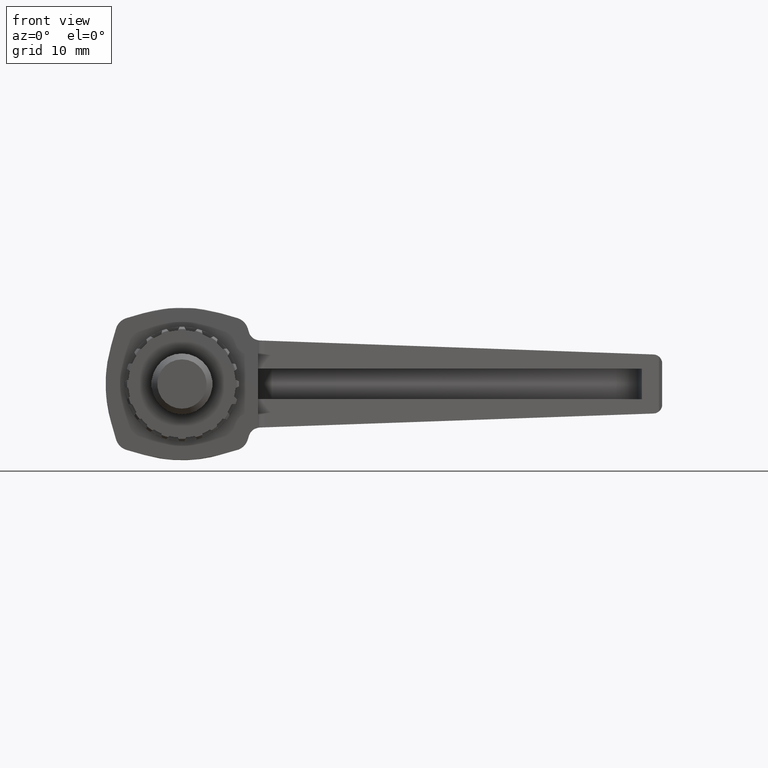
[diagram: clean part render]
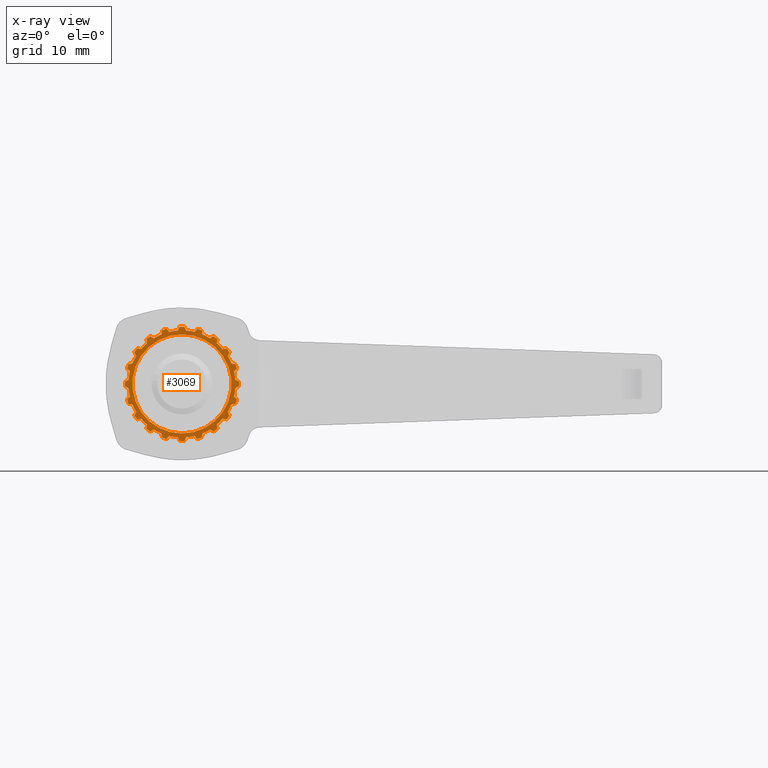
[diagram: x-ray — body ghosted, one internal face saturated and labeled with its STEP entity id]
A machine part, front view, then the same camera in x-ray: the body is ghosted and one INTERNAL B-rep face — a face not visible from any outside direction — is saturated and labeled: STEP entity #3069.
In plain terms, the highlighted planar face has unit normal (0, -1, 0).
Its self-contained STEP definition (entity closure, byte-faithful):
#190=FACE_BOUND('',#959,.T.);
#218=LINE('',#4412,#459);
#222=LINE('',#4437,#463);
#226=LINE('',#4450,#467);
#230=LINE('',#4469,#471);
#234=LINE('',#4482,#475);
#238=LINE('',#4501,#479);
#242=LINE('',#4514,#483);
#246=LINE('',#4533,#487);
#250=LINE('',#4546,#491);
#254=LINE('',#4565,#495);
#258=LINE('',#4578,#499);
#262=LINE('',#4597,#503);
#266=LINE('',#4610,#507);
#270=LINE('',#4629,#511);
#274=LINE('',#4642,#515);
#278=LINE('',#4661,#519);
#282=LINE('',#4674,#523);
#286=LINE('',#4693,#527);
#290=LINE('',#4706,#531);
#294=LINE('',#4725,#535);
#298=LINE('',#4738,#539);
#302=LINE('',#4757,#543);
#306=LINE('',#4770,#547);
#310=LINE('',#4789,#551);
#314=LINE('',#4802,#555);
#318=LINE('',#4821,#559);
#322=LINE('',#4834,#563);
#326=LINE('',#4853,#567);
#330=LINE('',#4866,#571);
#334=LINE('',#4885,#575);
#338=LINE('',#4898,#579);
#342=LINE('',#4917,#583);
#346=LINE('',#4930,#587);
#350=LINE('',#4949,#591);
#354=LINE('',#4962,#595);
#358=LINE('',#4981,#599);
#362=LINE('',#4994,#603);
#366=LINE('',#5013,#607);
#370=LINE('',#5026,#611);
#373=LINE('',#5038,#614);
#459=VECTOR('',#3511,0.535740453907497);
#463=VECTOR('',#3531,0.535740453907494);
#467=VECTOR('',#3537,0.535740453907497);
#471=VECTOR('',#3555,0.535740453907499);
#475=VECTOR('',#3561,0.535740453907502);
#479=VECTOR('',#3579,0.53574045390749);
#483=VECTOR('',#3585,0.53574045390749);
#487=VECTOR('',#3603,0.535740453907507);
#491=VECTOR('',#3609,0.535740453907502);
#495=VECTOR('',#3627,0.535740453907498);
#499=VECTOR('',#3633,0.535740453907495);
#503=VECTOR('',#3651,0.535740453907495);
#507=VECTOR('',#3657,0.535740453907497);
#511=VECTOR('',#3675,0.535740453907489);
#515=VECTOR('',#3681,0.535740453907502);
#519=VECTOR('',#3699,0.53574045390749);
#523=VECTOR('',#3705,0.535740453907495);
#527=VECTOR('',#3723,0.535740453907497);
#531=VECTOR('',#3729,0.535740453907501);
#535=VECTOR('',#3747,0.535740453907499);
#539=VECTOR('',#3753,0.535740453907502);
#543=VECTOR('',#3771,0.535740453907495);
#547=VECTOR('',#3777,0.535740453907495);
#551=VECTOR('',#3795,0.53574045390749);
#555=VECTOR('',#3801,0.535740453907502);
#559=VECTOR('',#3819,0.535740453907492);
#563=VECTOR('',#3825,0.53574045390749);
#567=VECTOR('',#3843,0.535740453907487);
#571=VECTOR('',#3849,0.535740453907495);
#575=VECTOR('',#3867,0.535740453907495);
#579=VECTOR('',#3873,0.535740453907495);
#583=VECTOR('',#3891,0.535740453907502);
#587=VECTOR('',#3897,0.535740453907497);
#591=VECTOR('',#3915,0.53574045390749);
#595=VECTOR('',#3921,0.535740453907492);
#599=VECTOR('',#3939,0.535740453907502);
#603=VECTOR('',#3945,0.53574045390749);
#607=VECTOR('',#3963,0.535740453907495);
#611=VECTOR('',#3969,0.535740453907502);
#614=VECTOR('',#3986,0.535740453907499);
#784=FACE_OUTER_BOUND('',#958,.T.);
#958=EDGE_LOOP('',(#2411,#2412,#2413,#2414,#2415,#2416,#2417,#2418,#2419,
#2420,#2421,#2422,#2423,#2424,#2425,#2426,#2427,#2428,#2429,#2430,#2431,
#2432,#2433,#2434,#2435,#2436,#2437,#2438,#2439,#2440,#2441,#2442,#2443,
#2444,#2445,#2446,#2447,#2448,#2449,#2450,#2451,#2452,#2453,#2454,#2455,
#2456,#2457,#2458,#2459,#2460,#2461,#2462,#2463,#2464,#2465,#2466,#2467,
#2468,#2469,#2470,#2471,#2472,#2473,#2474,#2475,#2476,#2477,#2478,#2479,
#2480,#2481,#2482,#2483,#2484,#2485,#2486,#2487,#2488,#2489,#2490));
#959=EDGE_LOOP('',(#2491));
#1043=CIRCLE('',#3151,7.50000000000103);
#1047=CIRCLE('',#3159,7.03124999999983);
#1049=CIRCLE('',#3164,7.4999999999995);
#1051=CIRCLE('',#3167,7.03124999999995);
#1053=CIRCLE('',#3172,7.49999999999924);
#1055=CIRCLE('',#3175,7.03124999999974);
#1057=CIRCLE('',#3180,7.49999999999985);
#1059=CIRCLE('',#3183,7.03125000000007);
#1061=CIRCLE('',#3188,7.50000000000053);
#1063=CIRCLE('',#3191,7.0312500000002);
#1065=CIRCLE('',#3196,7.50000000000005);
#1067=CIRCLE('',#3199,7.03125000000029);
#1069=CIRCLE('',#3204,7.50000000000036);
#1071=CIRCLE('',#3207,7.03125000000037);
#1073=CIRCLE('',#3212,7.50000000000016);
#1075=CIRCLE('',#3215,7.03125000000018);
#1077=CIRCLE('',#3220,7.49999999999891);
#1079=CIRCLE('',#3223,7.03125000000023);
#1081=CIRCLE('',#3228,7.4999999999996);
#1083=CIRCLE('',#3231,7.03125000000012);
#1085=CIRCLE('',#3236,7.50000000000049);
#1087=CIRCLE('',#3239,7.03124999999995);
#1089=CIRCLE('',#3244,7.50000000000138);
#1091=CIRCLE('',#3247,7.03124999999987);
#1093=CIRCLE('',#3252,7.49999999999982);
#1095=CIRCLE('',#3255,7.03125000000009);
#1097=CIRCLE('',#3260,7.49999999999865);
#1099=CIRCLE('',#3263,7.03125000000035);
#1101=CIRCLE('',#3268,7.50000000000007);
#1103=CIRCLE('',#3271,7.03124999999973);
#1105=CIRCLE('',#3276,7.50000000000153);
#1107=CIRCLE('',#3279,7.03124999999976);
#1109=CIRCLE('',#3284,7.50000000000024);
#1111=CIRCLE('',#3287,7.03125);
#1113=CIRCLE('',#3292,7.50000000000013);
#1115=CIRCLE('',#3295,7.03125000000002);
#1117=CIRCLE('',#3300,7.49999999999979);
#1119=CIRCLE('',#3303,7.03125000000013);
#1121=CIRCLE('',#3308,7.50000000000053);
#1123=CIRCLE('',#3311,7.03125000000037);
#1137=CIRCLE('',#3346,6.5);
#1196=VERTEX_POINT('',#4395);
#1199=VERTEX_POINT('',#4400);
#1202=VERTEX_POINT('',#4410);
#1206=VERTEX_POINT('',#4425);
#1209=VERTEX_POINT('',#4435);
#1210=VERTEX_POINT('',#4439);
#1214=VERTEX_POINT('',#4448);
#1216=VERTEX_POINT('',#4457);
#1219=VERTEX_POINT('',#4467);
#1220=VERTEX_POINT('',#4471);
#1224=VERTEX_POINT('',#4480);
#1226=VERTEX_POINT('',#4489);
#1229=VERTEX_POINT('',#4499);
#1230=VERTEX_POINT('',#4503);
#1234=VERTEX_POINT('',#4512);
#1236=VERTEX_POINT('',#4521);
#1239=VERTEX_POINT('',#4531);
#1240=VERTEX_POINT('',#4535);
#1244=VERTEX_POINT('',#4544);
#1246=VERTEX_POINT('',#4553);
#1249=VERTEX_POINT('',#4563);
#1250=VERTEX_POINT('',#4567);
#1254=VERTEX_POINT('',#4576);
#1256=VERTEX_POINT('',#4585);
#1259=VERTEX_POINT('',#4595);
#1260=VERTEX_POINT('',#4599);
#1264=VERTEX_POINT('',#4608);
#1266=VERTEX_POINT('',#4617);
#1269=VERTEX_POINT('',#4627);
#1270=VERTEX_POINT('',#4631);
#1274=VERTEX_POINT('',#4640);
#1276=VERTEX_POINT('',#4649);
#1279=VERTEX_POINT('',#4659);
#1280=VERTEX_POINT('',#4663);
#1284=VERTEX_POINT('',#4672);
#1286=VERTEX_POINT('',#4681);
#1289=VERTEX_POINT('',#4691);
#1290=VERTEX_POINT('',#4695);
#1294=VERTEX_POINT('',#4704);
#1296=VERTEX_POINT('',#4713);
#1299=VERTEX_POINT('',#4723);
#1300=VERTEX_POINT('',#4727);
#1304=VERTEX_POINT('',#4736);
#1306=VERTEX_POINT('',#4745);
#1309=VERTEX_POINT('',#4755);
#1310=VERTEX_POINT('',#4759);
#1314=VERTEX_POINT('',#4768);
#1316=VERTEX_POINT('',#4777);
#1319=VERTEX_POINT('',#4787);
#1320=VERTEX_POINT('',#4791);
#1324=VERTEX_POINT('',#4800);
#1326=VERTEX_POINT('',#4809);
#1329=VERTEX_POINT('',#4819);
#1330=VERTEX_POINT('',#4823);
#1334=VERTEX_POINT('',#4832);
#1336=VERTEX_POINT('',#4841);
#1339=VERTEX_POINT('',#4851);
#1340=VERTEX_POINT('',#4855);
#1344=VERTEX_POINT('',#4864);
#1346=VERTEX_POINT('',#4873);
#1349=VERTEX_POINT('',#4883);
#1350=VERTEX_POINT('',#4887);
#1354=VERTEX_POINT('',#4896);
#1356=VERTEX_POINT('',#4905);
#1359=VERTEX_POINT('',#4915);
#1360=VERTEX_POINT('',#4919);
#1364=VERTEX_POINT('',#4928);
#1366=VERTEX_POINT('',#4937);
#1369=VERTEX_POINT('',#4947);
#1370=VERTEX_POINT('',#4951);
#1374=VERTEX_POINT('',#4960);
#1376=VERTEX_POINT('',#4969);
#1379=VERTEX_POINT('',#4979);
#1380=VERTEX_POINT('',#4983);
#1384=VERTEX_POINT('',#4992);
#1386=VERTEX_POINT('',#5001);
#1389=VERTEX_POINT('',#5011);
#1390=VERTEX_POINT('',#5015);
#1394=VERTEX_POINT('',#5024);
#1396=VERTEX_POINT('',#5033);
#1425=VERTEX_POINT('',#5127);
#1511=EDGE_CURVE('',#1196,#1199,#1043,.F.);
#1515=EDGE_CURVE('',#1199,#1202,#218,.T.);
#1521=EDGE_CURVE('',#1202,#1206,#1047,.F.);
#1525=EDGE_CURVE('',#1206,#1209,#222,.T.);
#1530=EDGE_CURVE('',#1210,#1214,#226,.T.);
#1532=EDGE_CURVE('',#1209,#1210,#1049,.F.);
#1535=EDGE_CURVE('',#1214,#1216,#1051,.F.);
#1539=EDGE_CURVE('',#1216,#1219,#230,.T.);
#1544=EDGE_CURVE('',#1220,#1224,#234,.T.);
#1546=EDGE_CURVE('',#1219,#1220,#1053,.F.);
#1549=EDGE_CURVE('',#1224,#1226,#1055,.F.);
#1553=EDGE_CURVE('',#1226,#1229,#238,.T.);
#1558=EDGE_CURVE('',#1230,#1234,#242,.T.);
#1560=EDGE_CURVE('',#1229,#1230,#1057,.F.);
#1563=EDGE_CURVE('',#1234,#1236,#1059,.F.);
#1567=EDGE_CURVE('',#1236,#1239,#246,.T.);
#1572=EDGE_CURVE('',#1240,#1244,#250,.T.);
#1574=EDGE_CURVE('',#1239,#1240,#1061,.F.);
#1577=EDGE_CURVE('',#1244,#1246,#1063,.F.);
#1581=EDGE_CURVE('',#1246,#1249,#254,.T.);
#1586=EDGE_CURVE('',#1250,#1254,#258,.T.);
#1588=EDGE_CURVE('',#1249,#1250,#1065,.F.);
#1591=EDGE_CURVE('',#1254,#1256,#1067,.F.);
#1595=EDGE_CURVE('',#1256,#1259,#262,.T.);
#1600=EDGE_CURVE('',#1260,#1264,#266,.T.);
#1602=EDGE_CURVE('',#1259,#1260,#1069,.F.);
#1605=EDGE_CURVE('',#1264,#1266,#1071,.F.);
#1609=EDGE_CURVE('',#1266,#1269,#270,.T.);
#1614=EDGE_CURVE('',#1270,#1274,#274,.T.);
#1616=EDGE_CURVE('',#1269,#1270,#1073,.F.);
#1619=EDGE_CURVE('',#1274,#1276,#1075,.F.);
#1623=EDGE_CURVE('',#1276,#1279,#278,.T.);
#1628=EDGE_CURVE('',#1280,#1284,#282,.T.);
#1630=EDGE_CURVE('',#1279,#1280,#1077,.F.);
#1633=EDGE_CURVE('',#1284,#1286,#1079,.F.);
#1637=EDGE_CURVE('',#1286,#1289,#286,.T.);
#1642=EDGE_CURVE('',#1290,#1294,#290,.T.);
#1644=EDGE_CURVE('',#1289,#1290,#1081,.F.);
#1647=EDGE_CURVE('',#1294,#1296,#1083,.F.);
#1651=EDGE_CURVE('',#1296,#1299,#294,.T.);
#1656=EDGE_CURVE('',#1300,#1304,#298,.T.);
#1658=EDGE_CURVE('',#1299,#1300,#1085,.F.);
#1661=EDGE_CURVE('',#1304,#1306,#1087,.F.);
#1665=EDGE_CURVE('',#1306,#1309,#302,.T.);
#1670=EDGE_CURVE('',#1310,#1314,#306,.T.);
#1672=EDGE_CURVE('',#1309,#1310,#1089,.F.);
#1675=EDGE_CURVE('',#1314,#1316,#1091,.F.);
#1679=EDGE_CURVE('',#1316,#1319,#310,.T.);
#1684=EDGE_CURVE('',#1320,#1324,#314,.T.);
#1686=EDGE_CURVE('',#1319,#1320,#1093,.F.);
#1689=EDGE_CURVE('',#1324,#1326,#1095,.F.);
#1693=EDGE_CURVE('',#1326,#1329,#318,.T.);
#1698=EDGE_CURVE('',#1330,#1334,#322,.T.);
#1700=EDGE_CURVE('',#1329,#1330,#1097,.F.);
#1703=EDGE_CURVE('',#1334,#1336,#1099,.F.);
#1707=EDGE_CURVE('',#1336,#1339,#326,.T.);
#1712=EDGE_CURVE('',#1340,#1344,#330,.T.);
#1714=EDGE_CURVE('',#1339,#1340,#1101,.F.);
#1717=EDGE_CURVE('',#1344,#1346,#1103,.F.);
#1721=EDGE_CURVE('',#1346,#1349,#334,.T.);
#1726=EDGE_CURVE('',#1350,#1354,#338,.T.);
#1728=EDGE_CURVE('',#1349,#1350,#1105,.F.);
#1731=EDGE_CURVE('',#1354,#1356,#1107,.F.);
#1735=EDGE_CURVE('',#1356,#1359,#342,.T.);
#1740=EDGE_CURVE('',#1360,#1364,#346,.T.);
#1742=EDGE_CURVE('',#1359,#1360,#1109,.F.);
#1745=EDGE_CURVE('',#1364,#1366,#1111,.F.);
#1749=EDGE_CURVE('',#1366,#1369,#350,.T.);
#1754=EDGE_CURVE('',#1370,#1374,#354,.T.);
#1756=EDGE_CURVE('',#1369,#1370,#1113,.F.);
#1759=EDGE_CURVE('',#1374,#1376,#1115,.F.);
#1763=EDGE_CURVE('',#1376,#1379,#358,.T.);
#1768=EDGE_CURVE('',#1380,#1384,#362,.T.);
#1770=EDGE_CURVE('',#1379,#1380,#1117,.F.);
#1773=EDGE_CURVE('',#1384,#1386,#1119,.F.);
#1777=EDGE_CURVE('',#1386,#1389,#366,.T.);
#1782=EDGE_CURVE('',#1390,#1394,#370,.T.);
#1784=EDGE_CURVE('',#1389,#1390,#1121,.F.);
#1787=EDGE_CURVE('',#1394,#1396,#1123,.F.);
#1789=EDGE_CURVE('',#1396,#1196,#373,.T.);
#1830=EDGE_CURVE('',#1425,#1425,#1137,.T.);
#2411=ORIENTED_EDGE('',*,*,#1658,.T.);
#2412=ORIENTED_EDGE('',*,*,#1656,.T.);
#2413=ORIENTED_EDGE('',*,*,#1661,.T.);
#2414=ORIENTED_EDGE('',*,*,#1665,.T.);
#2415=ORIENTED_EDGE('',*,*,#1672,.T.);
#2416=ORIENTED_EDGE('',*,*,#1670,.T.);
#2417=ORIENTED_EDGE('',*,*,#1675,.T.);
#2418=ORIENTED_EDGE('',*,*,#1679,.T.);
#2419=ORIENTED_EDGE('',*,*,#1686,.T.);
#2420=ORIENTED_EDGE('',*,*,#1684,.T.);
#2421=ORIENTED_EDGE('',*,*,#1689,.T.);
#2422=ORIENTED_EDGE('',*,*,#1693,.T.);
#2423=ORIENTED_EDGE('',*,*,#1700,.T.);
#2424=ORIENTED_EDGE('',*,*,#1698,.T.);
#2425=ORIENTED_EDGE('',*,*,#1703,.T.);
#2426=ORIENTED_EDGE('',*,*,#1707,.T.);
#2427=ORIENTED_EDGE('',*,*,#1714,.T.);
#2428=ORIENTED_EDGE('',*,*,#1712,.T.);
#2429=ORIENTED_EDGE('',*,*,#1717,.T.);
#2430=ORIENTED_EDGE('',*,*,#1721,.T.);
#2431=ORIENTED_EDGE('',*,*,#1728,.T.);
#2432=ORIENTED_EDGE('',*,*,#1726,.T.);
#2433=ORIENTED_EDGE('',*,*,#1731,.T.);
#2434=ORIENTED_EDGE('',*,*,#1735,.T.);
#2435=ORIENTED_EDGE('',*,*,#1742,.T.);
#2436=ORIENTED_EDGE('',*,*,#1740,.T.);
#2437=ORIENTED_EDGE('',*,*,#1745,.T.);
#2438=ORIENTED_EDGE('',*,*,#1749,.T.);
#2439=ORIENTED_EDGE('',*,*,#1756,.T.);
#2440=ORIENTED_EDGE('',*,*,#1754,.T.);
#2441=ORIENTED_EDGE('',*,*,#1759,.T.);
#2442=ORIENTED_EDGE('',*,*,#1763,.T.);
#2443=ORIENTED_EDGE('',*,*,#1770,.T.);
#2444=ORIENTED_EDGE('',*,*,#1768,.T.);
#2445=ORIENTED_EDGE('',*,*,#1773,.T.);
#2446=ORIENTED_EDGE('',*,*,#1777,.T.);
#2447=ORIENTED_EDGE('',*,*,#1784,.T.);
#2448=ORIENTED_EDGE('',*,*,#1782,.T.);
#2449=ORIENTED_EDGE('',*,*,#1787,.T.);
#2450=ORIENTED_EDGE('',*,*,#1789,.T.);
#2451=ORIENTED_EDGE('',*,*,#1511,.T.);
#2452=ORIENTED_EDGE('',*,*,#1515,.T.);
#2453=ORIENTED_EDGE('',*,*,#1521,.T.);
#2454=ORIENTED_EDGE('',*,*,#1525,.T.);
#2455=ORIENTED_EDGE('',*,*,#1532,.T.);
#2456=ORIENTED_EDGE('',*,*,#1530,.T.);
#2457=ORIENTED_EDGE('',*,*,#1535,.T.);
#2458=ORIENTED_EDGE('',*,*,#1539,.T.);
#2459=ORIENTED_EDGE('',*,*,#1546,.T.);
#2460=ORIENTED_EDGE('',*,*,#1544,.T.);
#2461=ORIENTED_EDGE('',*,*,#1549,.T.);
#2462=ORIENTED_EDGE('',*,*,#1553,.T.);
#2463=ORIENTED_EDGE('',*,*,#1560,.T.);
#2464=ORIENTED_EDGE('',*,*,#1558,.T.);
#2465=ORIENTED_EDGE('',*,*,#1563,.T.);
#2466=ORIENTED_EDGE('',*,*,#1567,.T.);
#2467=ORIENTED_EDGE('',*,*,#1574,.T.);
#2468=ORIENTED_EDGE('',*,*,#1572,.T.);
#2469=ORIENTED_EDGE('',*,*,#1577,.T.);
#2470=ORIENTED_EDGE('',*,*,#1581,.T.);
#2471=ORIENTED_EDGE('',*,*,#1588,.T.);
#2472=ORIENTED_EDGE('',*,*,#1586,.T.);
#2473=ORIENTED_EDGE('',*,*,#1591,.T.);
#2474=ORIENTED_EDGE('',*,*,#1595,.T.);
#2475=ORIENTED_EDGE('',*,*,#1602,.T.);
#2476=ORIENTED_EDGE('',*,*,#1600,.T.);
#2477=ORIENTED_EDGE('',*,*,#1605,.T.);
#2478=ORIENTED_EDGE('',*,*,#1609,.T.);
#2479=ORIENTED_EDGE('',*,*,#1616,.T.);
#2480=ORIENTED_EDGE('',*,*,#1614,.T.);
#2481=ORIENTED_EDGE('',*,*,#1619,.T.);
#2482=ORIENTED_EDGE('',*,*,#1623,.T.);
#2483=ORIENTED_EDGE('',*,*,#1630,.T.);
#2484=ORIENTED_EDGE('',*,*,#1628,.T.);
#2485=ORIENTED_EDGE('',*,*,#1633,.T.);
#2486=ORIENTED_EDGE('',*,*,#1637,.T.);
#2487=ORIENTED_EDGE('',*,*,#1644,.T.);
#2488=ORIENTED_EDGE('',*,*,#1642,.T.);
#2489=ORIENTED_EDGE('',*,*,#1647,.T.);
#2490=ORIENTED_EDGE('',*,*,#1651,.T.);
#2491=ORIENTED_EDGE('',*,*,#1830,.T.);
#2922=PLANE('',#3345);
#3069=ADVANCED_FACE('',(#784,#190),#2922,.F.);
#3151=AXIS2_PLACEMENT_3D('',#4402,#3505,#3506);
#3159=AXIS2_PLACEMENT_3D('',#4427,#3525,#3526);
#3164=AXIS2_PLACEMENT_3D('',#4453,#3542,#3543);
#3167=AXIS2_PLACEMENT_3D('',#4459,#3549,#3550);
#3172=AXIS2_PLACEMENT_3D('',#4485,#3566,#3567);
#3175=AXIS2_PLACEMENT_3D('',#4491,#3573,#3574);
#3180=AXIS2_PLACEMENT_3D('',#4517,#3590,#3591);
#3183=AXIS2_PLACEMENT_3D('',#4523,#3597,#3598);
#3188=AXIS2_PLACEMENT_3D('',#4549,#3614,#3615);
#3191=AXIS2_PLACEMENT_3D('',#4555,#3621,#3622);
#3196=AXIS2_PLACEMENT_3D('',#4581,#3638,#3639);
#3199=AXIS2_PLACEMENT_3D('',#4587,#3645,#3646);
#3204=AXIS2_PLACEMENT_3D('',#4613,#3662,#3663);
#3207=AXIS2_PLACEMENT_3D('',#4619,#3669,#3670);
#3212=AXIS2_PLACEMENT_3D('',#4645,#3686,#3687);
#3215=AXIS2_PLACEMENT_3D('',#4651,#3693,#3694);
#3220=AXIS2_PLACEMENT_3D('',#4677,#3710,#3711);
#3223=AXIS2_PLACEMENT_3D('',#4683,#3717,#3718);
#3228=AXIS2_PLACEMENT_3D('',#4709,#3734,#3735);
#3231=AXIS2_PLACEMENT_3D('',#4715,#3741,#3742);
#3236=AXIS2_PLACEMENT_3D('',#4741,#3758,#3759);
#3239=AXIS2_PLACEMENT_3D('',#4747,#3765,#3766);
#3244=AXIS2_PLACEMENT_3D('',#4773,#3782,#3783);
#3247=AXIS2_PLACEMENT_3D('',#4779,#3789,#3790);
#3252=AXIS2_PLACEMENT_3D('',#4805,#3806,#3807);
#3255=AXIS2_PLACEMENT_3D('',#4811,#3813,#3814);
#3260=AXIS2_PLACEMENT_3D('',#4837,#3830,#3831);
#3263=AXIS2_PLACEMENT_3D('',#4843,#3837,#3838);
#3268=AXIS2_PLACEMENT_3D('',#4869,#3854,#3855);
#3271=AXIS2_PLACEMENT_3D('',#4875,#3861,#3862);
#3276=AXIS2_PLACEMENT_3D('',#4901,#3878,#3879);
#3279=AXIS2_PLACEMENT_3D('',#4907,#3885,#3886);
#3284=AXIS2_PLACEMENT_3D('',#4933,#3902,#3903);
#3287=AXIS2_PLACEMENT_3D('',#4939,#3909,#3910);
#3292=AXIS2_PLACEMENT_3D('',#4965,#3926,#3927);
#3295=AXIS2_PLACEMENT_3D('',#4971,#3933,#3934);
#3300=AXIS2_PLACEMENT_3D('',#4997,#3950,#3951);
#3303=AXIS2_PLACEMENT_3D('',#5003,#3957,#3958);
#3308=AXIS2_PLACEMENT_3D('',#5029,#3974,#3975);
#3311=AXIS2_PLACEMENT_3D('',#5035,#3981,#3982);
#3345=AXIS2_PLACEMENT_3D('',#5126,#4078,#4079);
#3346=AXIS2_PLACEMENT_3D('',#5128,#4080,#4081);
#3505=DIRECTION('center_axis',(0.,-1.,0.));
#3506=DIRECTION('ref_axis',(0.,0.,-1.));
#3511=DIRECTION('',(0.90258528434986,0.,0.430511096808297));
#3525=DIRECTION('center_axis',(0.,-1.,0.));
#3526=DIRECTION('ref_axis',(0.,0.,-1.));
#3531=DIRECTION('',(-0.725374371012289,0.,0.688354575693753));
#3537=DIRECTION('',(0.99144486137381,0.,0.130526192220054));
#3542=DIRECTION('center_axis',(0.,-1.,0.));
#3543=DIRECTION('ref_axis',(0.,0.,-1.));
#3549=DIRECTION('center_axis',(0.,-1.,0.));
#3550=DIRECTION('ref_axis',(0.,0.,-1.));
#3555=DIRECTION('',(-0.477158760259612,0.,0.878817112661963));
#3561=DIRECTION('',(0.983254907563955,0.,-0.182235525492144));
#3566=DIRECTION('center_axis',(0.,-1.,0.));
#3567=DIRECTION('ref_axis',(0.,0.,-1.));
#3573=DIRECTION('center_axis',(0.,-1.,0.));
#3574=DIRECTION('ref_axis',(0.,0.,-1.));
#3579=DIRECTION('',(-0.18223552549215,0.,0.983254907563954));
#3585=DIRECTION('',(0.878817112661964,0.,-0.47715876025961));
#3590=DIRECTION('center_axis',(0.,-1.,0.));
#3591=DIRECTION('ref_axis',(0.,0.,-1.));
#3597=DIRECTION('center_axis',(0.,-1.,0.));
#3598=DIRECTION('ref_axis',(0.,0.,-1.));
#3603=DIRECTION('',(0.13052619222005,0.,0.991444861373811));
#3609=DIRECTION('',(0.688354575693756,0.,-0.725374371012285));
#3614=DIRECTION('center_axis',(0.,-1.,0.));
#3615=DIRECTION('ref_axis',(0.,0.,-1.));
#3621=DIRECTION('center_axis',(0.,-1.,0.));
#3622=DIRECTION('ref_axis',(0.,0.,-1.));
#3627=DIRECTION('',(0.430511096808294,0.,0.902585284349861));
#3633=DIRECTION('',(0.430511096808297,0.,-0.90258528434986));
#3638=DIRECTION('center_axis',(0.,-1.,0.));
#3639=DIRECTION('ref_axis',(0.,0.,-1.));
#3645=DIRECTION('center_axis',(0.,-1.,0.));
#3646=DIRECTION('ref_axis',(0.,0.,-1.));
#3651=DIRECTION('',(0.688354575693753,0.,0.725374371012289));
#3657=DIRECTION('',(0.130526192220054,0.,-0.99144486137381));
#3662=DIRECTION('center_axis',(0.,-1.,0.));
#3663=DIRECTION('ref_axis',(0.,0.,-1.));
#3669=DIRECTION('center_axis',(0.,-1.,0.));
#3670=DIRECTION('ref_axis',(0.,0.,-1.));
#3675=DIRECTION('',(0.878817112661964,0.,0.477158760259611));
#3681=DIRECTION('',(-0.182235525492146,0.,-0.983254907563955));
#3686=DIRECTION('center_axis',(0.,-1.,0.));
#3687=DIRECTION('ref_axis',(0.,0.,-1.));
#3693=DIRECTION('center_axis',(0.,-1.,0.));
#3694=DIRECTION('ref_axis',(0.,0.,-1.));
#3699=DIRECTION('',(0.983254907563954,0.,0.18223552549215));
#3705=DIRECTION('',(-0.477158760259605,0.,-0.878817112661967));
#3710=DIRECTION('center_axis',(0.,-1.,0.));
#3711=DIRECTION('ref_axis',(0.,0.,-1.));
#3717=DIRECTION('center_axis',(0.,-1.,0.));
#3718=DIRECTION('ref_axis',(0.,0.,-1.));
#3723=DIRECTION('',(0.991444861373811,0.,-0.130526192220047));
#3729=DIRECTION('',(-0.725374371012285,0.,-0.688354575693757));
#3734=DIRECTION('center_axis',(0.,-1.,0.));
#3735=DIRECTION('ref_axis',(0.,0.,-1.));
#3741=DIRECTION('center_axis',(0.,-1.,0.));
#3742=DIRECTION('ref_axis',(0.,0.,-1.));
#3747=DIRECTION('',(0.902585284349862,0.,-0.430511096808293));
#3753=DIRECTION('',(-0.902585284349859,0.,-0.430511096808299));
#3758=DIRECTION('center_axis',(0.,-1.,0.));
#3759=DIRECTION('ref_axis',(0.,0.,-1.));
#3765=DIRECTION('center_axis',(0.,-1.,0.));
#3766=DIRECTION('ref_axis',(0.,0.,-1.));
#3771=DIRECTION('',(0.725374371012291,0.,-0.68835457569375));
#3777=DIRECTION('',(-0.99144486137381,0.,-0.130526192220054));
#3782=DIRECTION('center_axis',(0.,-1.,0.));
#3783=DIRECTION('ref_axis',(0.,0.,-1.));
#3789=DIRECTION('center_axis',(0.,-1.,0.));
#3790=DIRECTION('ref_axis',(0.,0.,-1.));
#3795=DIRECTION('',(0.477158760259613,0.,-0.878817112661963));
#3801=DIRECTION('',(-0.983254907563955,0.,0.182235525492145));
#3806=DIRECTION('center_axis',(0.,-1.,0.));
#3807=DIRECTION('ref_axis',(0.,0.,-1.));
#3813=DIRECTION('center_axis',(0.,-1.,0.));
#3814=DIRECTION('ref_axis',(0.,0.,-1.));
#3819=DIRECTION('',(0.18223552549215,0.,-0.983254907563954));
#3825=DIRECTION('',(-0.878817112661964,0.,0.47715876025961));
#3830=DIRECTION('center_axis',(0.,-1.,0.));
#3831=DIRECTION('ref_axis',(0.,0.,-1.));
#3837=DIRECTION('center_axis',(0.,-1.,0.));
#3838=DIRECTION('ref_axis',(0.,0.,-1.));
#3843=DIRECTION('',(-0.130526192220046,0.,-0.991444861373811));
#3849=DIRECTION('',(-0.688354575693754,0.,0.725374371012288));
#3854=DIRECTION('center_axis',(0.,-1.,0.));
#3855=DIRECTION('ref_axis',(0.,0.,-1.));
#3861=DIRECTION('center_axis',(0.,-1.,0.));
#3862=DIRECTION('ref_axis',(0.,0.,-1.));
#3867=DIRECTION('',(-0.430511096808294,0.,-0.902585284349861));
#3873=DIRECTION('',(-0.430511096808294,0.,0.902585284349861));
#3878=DIRECTION('center_axis',(0.,-1.,0.));
#3879=DIRECTION('ref_axis',(0.,0.,-1.));
#3885=DIRECTION('center_axis',(0.,-1.,0.));
#3886=DIRECTION('ref_axis',(0.,0.,-1.));
#3891=DIRECTION('',(-0.688354575693757,0.,-0.725374371012285));
#3897=DIRECTION('',(-0.130526192220053,0.,0.99144486137381));
#3902=DIRECTION('center_axis',(0.,-1.,0.));
#3903=DIRECTION('ref_axis',(0.,0.,-1.));
#3909=DIRECTION('center_axis',(0.,-1.,0.));
#3910=DIRECTION('ref_axis',(0.,0.,-1.));
#3915=DIRECTION('',(-0.878817112661965,0.,-0.477158760259608));
#3921=DIRECTION('',(0.182235525492146,0.,0.983254907563955));
#3926=DIRECTION('center_axis',(0.,-1.,0.));
#3927=DIRECTION('ref_axis',(0.,0.,-1.));
#3933=DIRECTION('center_axis',(0.,-1.,0.));
#3934=DIRECTION('ref_axis',(0.,0.,-1.));
#3939=DIRECTION('',(-0.983254907563955,0.,-0.182235525492146));
#3945=DIRECTION('',(0.47715876025961,0.,0.878817112661965));
#3950=DIRECTION('center_axis',(0.,-1.,0.));
#3951=DIRECTION('ref_axis',(0.,0.,-1.));
#3957=DIRECTION('center_axis',(0.,-1.,0.));
#3958=DIRECTION('ref_axis',(0.,0.,-1.));
#3963=DIRECTION('',(-0.99144486137381,0.,0.13052619222005));
#3969=DIRECTION('',(0.725374371012285,0.,0.688354575693757));
#3974=DIRECTION('center_axis',(0.,-1.,0.));
#3975=DIRECTION('ref_axis',(0.,0.,-1.));
#3981=DIRECTION('center_axis',(0.,-1.,0.));
#3982=DIRECTION('ref_axis',(0.,0.,-1.));
#3986=DIRECTION('',(-0.90258528434986,0.,0.430511096808296));
#4078=DIRECTION('center_axis',(0.,-1.,0.));
#4079=DIRECTION('ref_axis',(0.,0.,-1.));
#4080=DIRECTION('center_axis',(0.,-1.,0.));
#4081=DIRECTION('ref_axis',(0.,0.,-1.));
#4395=CARTESIAN_POINT('',(-7.49312645273888,7.6,-0.321023306420111));
#4400=CARTESIAN_POINT('',(-7.49312645273888,7.6,0.321023306420117));
#4402=CARTESIAN_POINT('Origin',(1.02608893604028E-012,7.6,2.04372109513518E-014));
#4410=CARTESIAN_POINT('',(-7.00957500281106,7.6,0.55166551683641));
#4412=CARTESIAN_POINT('',(-7.49312645273888,7.6,0.321023306420116));
#4425=CARTESIAN_POINT('',(-6.83697600279616,7.6,1.64141271461184));
#4427=CARTESIAN_POINT('Origin',(-1.73472347597681E-013,7.6,1.78893358460108E-014));
#4435=CARTESIAN_POINT('',(-7.22558839757515,7.6,2.01019210744331));
#4437=CARTESIAN_POINT('',(-6.83697600279616,7.6,1.64141271461184));
#4439=CARTESIAN_POINT('',(-7.02718508302664,7.6,2.62081472235025));
#4448=CARTESIAN_POINT('',(-6.49602796296998,7.6,2.69074288381704));
#4450=CARTESIAN_POINT('',(-7.02718508302664,7.6,2.62081472235024));
#4453=CARTESIAN_POINT('Origin',(-4.80518402845576E-013,7.6,1.4658413372004E-013));
#4457=CARTESIAN_POINT('',(-5.99512615561471,7.6,3.67381803315901));
#4459=CARTESIAN_POINT('Origin',(-4.85722573273506E-014,7.6,2.08166817117217E-014));
#4467=CARTESIAN_POINT('',(-6.25075940642213,7.6,4.14463591199821));
#4469=CARTESIAN_POINT('',(-5.9951261556147,7.6,3.67381803315901));
#4471=CARTESIAN_POINT('',(-5.87337387611031,7.6,4.66406253296684));
#4480=CARTESIAN_POINT('',(-5.34660444562522,7.6,4.5664315898216));
#4482=CARTESIAN_POINT('',(-5.87337387611031,7.6,4.66406253296684));
#4485=CARTESIAN_POINT('Origin',(-6.21031004399697E-013,7.6,4.44089209850063E-013));
#4489=CARTESIAN_POINT('',(-4.56643158982161,7.6,5.34660444562522));
#4491=CARTESIAN_POINT('Origin',(-1.89084858881472E-013,7.6,1.8474805019153E-013));
#4499=CARTESIAN_POINT('',(-4.66406253296684,7.6,5.8733738761103));
#4501=CARTESIAN_POINT('',(-4.5664315898216,7.6,5.34660444562522));
#4503=CARTESIAN_POINT('',(-4.14463591199821,7.6,6.25075940642213));
#4512=CARTESIAN_POINT('',(-3.67381803315902,7.6,5.99512615561471));
#4514=CARTESIAN_POINT('',(-4.14463591199821,7.6,6.25075940642213));
#4517=CARTESIAN_POINT('Origin',(-7.80625564189563E-014,7.6,1.30971622436249E-013));
#4521=CARTESIAN_POINT('',(-2.69074288381704,7.6,6.49602796296998));
#4523=CARTESIAN_POINT('Origin',(4.0766001685455E-014,7.6,-5.72458747072346E-014));
#4531=CARTESIAN_POINT('',(-2.62081472235025,7.6,7.02718508302665));
#4533=CARTESIAN_POINT('',(-2.69074288381704,7.6,6.49602796296998));
#4535=CARTESIAN_POINT('',(-2.01019210744331,7.6,7.22558839757515));
#4544=CARTESIAN_POINT('',(-1.64141271461183,7.6,6.83697600279616));
#4546=CARTESIAN_POINT('',(-2.01019210744331,7.6,7.22558839757515));
#4549=CARTESIAN_POINT('Origin',(1.45283091113058E-013,7.6,-5.13478148889135E-013));
#4553=CARTESIAN_POINT('',(-0.551665516836413,7.6,7.00957500281106));
#4555=CARTESIAN_POINT('Origin',(4.11996825544492E-014,7.6,-1.94289029309402E-013));
#4563=CARTESIAN_POINT('',(-0.321023306420119,7.6,7.49312645273888));
#4565=CARTESIAN_POINT('',(-0.551665516836409,7.6,7.00957500281106));
#4567=CARTESIAN_POINT('',(0.321023306420119,7.6,7.49312645273888));
#4576=CARTESIAN_POINT('',(0.551665516836408,7.6,7.00957500281106));
#4578=CARTESIAN_POINT('',(0.321023306420122,7.6,7.49312645273888));
#4581=CARTESIAN_POINT('Origin',(-8.94466792300541E-016,7.6,-4.9439619065339E-014));
#4585=CARTESIAN_POINT('',(1.64141271461184,7.6,6.83697600279616));
#4587=CARTESIAN_POINT('Origin',(-4.6295432765131E-014,7.6,-2.83627288322208E-013));
#4595=CARTESIAN_POINT('',(2.01019210744331,7.6,7.22558839757515));
#4597=CARTESIAN_POINT('',(1.64141271461184,7.6,6.83697600279617));
#4599=CARTESIAN_POINT('',(2.62081472235025,7.6,7.02718508302665));
#4608=CARTESIAN_POINT('',(2.69074288381704,7.6,6.49602796296999));
#4610=CARTESIAN_POINT('',(2.62081472235024,7.6,7.02718508302665));
#4613=CARTESIAN_POINT('Origin',(-1.09287578986539E-013,7.6,-3.46944695195361E-013));
#4617=CARTESIAN_POINT('',(3.67381803315902,7.6,5.99512615561471));
#4619=CARTESIAN_POINT('Origin',(-1.56558793706907E-013,7.6,-3.32199545649559E-013));
#4627=CARTESIAN_POINT('',(4.14463591199821,7.6,6.25075940642213));
#4629=CARTESIAN_POINT('',(3.67381803315902,7.6,5.99512615561471));
#4631=CARTESIAN_POINT('',(4.66406253296683,7.6,5.87337387611031));
#4640=CARTESIAN_POINT('',(4.5664315898216,7.6,5.34660444562522));
#4642=CARTESIAN_POINT('',(4.66406253296683,7.6,5.87337387611031));
#4645=CARTESIAN_POINT('Origin',(-1.17961196366423E-013,7.6,-1.17961196366423E-013));
#4649=CARTESIAN_POINT('',(5.34660444562522,7.6,4.56643158982161));
#4651=CARTESIAN_POINT('Origin',(-1.35308431126191E-013,7.6,-1.17093834628434E-013));
#4659=CARTESIAN_POINT('',(5.8733738761103,7.6,4.66406253296684));
#4661=CARTESIAN_POINT('',(5.34660444562522,7.6,4.5664315898216));
#4663=CARTESIAN_POINT('',(6.25075940642212,7.6,4.14463591199822));
#4672=CARTESIAN_POINT('',(5.99512615561471,7.6,3.67381803315902));
#4674=CARTESIAN_POINT('',(6.25075940642213,7.6,4.14463591199822));
#4677=CARTESIAN_POINT('Origin',(8.66494376250415E-013,7.6,6.5746019739521E-013));
#4681=CARTESIAN_POINT('',(6.49602796296998,7.6,2.69074288381705));
#4683=CARTESIAN_POINT('Origin',(-1.96891114523368E-013,7.6,-1.1145598333151E-013));
#4691=CARTESIAN_POINT('',(7.02718508302664,7.6,2.62081472235025));
#4693=CARTESIAN_POINT('',(6.49602796296998,7.6,2.69074288381703));
#4695=CARTESIAN_POINT('',(7.22558839757515,7.6,2.01019210744332));
#4704=CARTESIAN_POINT('',(6.83697600279616,7.6,1.64141271461184));
#4706=CARTESIAN_POINT('',(7.22558839757515,7.6,2.01019210744332));
#4709=CARTESIAN_POINT('Origin',(3.77302356024956E-013,7.6,1.26634813746307E-013));
#4713=CARTESIAN_POINT('',(7.00957500281106,7.6,0.551665516836416));
#4715=CARTESIAN_POINT('Origin',(-1.21430643318377E-013,7.6,-2.12503625807159E-014));
#4723=CARTESIAN_POINT('',(7.49312645273888,7.6,0.32102330642012));
#4725=CARTESIAN_POINT('',(7.00957500281106,7.6,0.551665516836408));
#4727=CARTESIAN_POINT('',(7.49312645273888,7.6,-0.321023306420102));
#4736=CARTESIAN_POINT('',(7.00957500281106,7.6,-0.551665516836407));
#4738=CARTESIAN_POINT('',(7.49312645273888,7.6,-0.321023306420113));
#4741=CARTESIAN_POINT('Origin',(-4.90926743701436E-013,7.6,-7.42678488152571E-015));
#4745=CARTESIAN_POINT('',(6.83697600279616,7.6,-1.64141271461184));
#4747=CARTESIAN_POINT('Origin',(4.68375338513738E-014,7.6,-7.04731412115578E-015));
#4755=CARTESIAN_POINT('',(7.22558839757515,7.6,-2.01019210744331));
#4757=CARTESIAN_POINT('',(6.83697600279617,7.6,-1.64141271461184));
#4759=CARTESIAN_POINT('',(7.02718508302665,7.6,-2.62081472235025));
#4768=CARTESIAN_POINT('',(6.49602796296999,7.6,-2.69074288381703));
#4770=CARTESIAN_POINT('',(7.02718508302665,7.6,-2.62081472235025));
#4773=CARTESIAN_POINT('Origin',(-1.3166551182664E-012,7.6,4.29777741173254E-013));
#4777=CARTESIAN_POINT('',(5.99512615561471,7.6,-3.67381803315902));
#4779=CARTESIAN_POINT('Origin',(1.17093834628434E-013,7.6,-5.33427468862868E-014));
#4787=CARTESIAN_POINT('',(6.25075940642213,7.6,-4.14463591199821));
#4789=CARTESIAN_POINT('',(5.99512615561471,7.6,-3.67381803315902));
#4791=CARTESIAN_POINT('',(5.87337387611031,7.6,-4.66406253296683));
#4800=CARTESIAN_POINT('',(5.34660444562522,7.6,-4.5664315898216));
#4802=CARTESIAN_POINT('',(5.87337387611031,7.6,-4.66406253296683));
#4805=CARTESIAN_POINT('Origin',(1.51788304147971E-013,7.6,-9.54097911787244E-014));
#4809=CARTESIAN_POINT('',(4.5664315898216,7.6,-5.34660444562522));
#4811=CARTESIAN_POINT('Origin',(-6.59194920871187E-014,7.6,6.67868538251071E-014));
#4819=CARTESIAN_POINT('',(4.66406253296684,7.6,-5.8733738761103));
#4821=CARTESIAN_POINT('',(4.5664315898216,7.6,-5.34660444562522));
#4823=CARTESIAN_POINT('',(4.14463591199821,7.6,-6.25075940642213));
#4832=CARTESIAN_POINT('',(3.67381803315902,7.6,-5.99512615561471));
#4834=CARTESIAN_POINT('',(4.14463591199821,7.6,-6.25075940642213));
#4837=CARTESIAN_POINT('Origin',(7.97105437211343E-013,7.6,-1.09374315160338E-012));
#4841=CARTESIAN_POINT('',(2.69074288381704,7.6,-6.49602796296999));
#4843=CARTESIAN_POINT('Origin',(-1.58293517182884E-013,7.6,3.10515502199848E-013));
#4851=CARTESIAN_POINT('',(2.62081472235025,7.6,-7.02718508302664));
#4853=CARTESIAN_POINT('',(2.69074288381704,7.6,-6.49602796296999));
#4855=CARTESIAN_POINT('',(2.01019210744331,7.6,-7.22558839757515));
#4864=CARTESIAN_POINT('',(1.64141271461184,7.6,-6.83697600279616));
#4866=CARTESIAN_POINT('',(2.01019210744331,7.6,-7.22558839757515));
#4869=CARTESIAN_POINT('Origin',(-3.25260651745651E-014,7.6,6.07153216591882E-014));
#4873=CARTESIAN_POINT('',(0.551665516836408,7.6,-7.00957500281106));
#4875=CARTESIAN_POINT('Origin',(3.31765864780564E-014,7.6,-2.7148422399037E-013));
#4883=CARTESIAN_POINT('',(0.321023306420119,7.6,-7.49312645273888));
#4885=CARTESIAN_POINT('',(0.551665516836412,7.6,-7.00957500281106));
#4887=CARTESIAN_POINT('',(-0.32102330642012,7.6,-7.49312645273888));
#4896=CARTESIAN_POINT('',(-0.55166551683641,7.6,-7.00957500281106));
#4898=CARTESIAN_POINT('',(-0.321023306420119,7.6,-7.49312645273888));
#4901=CARTESIAN_POINT('Origin',(-1.05438661274215E-014,7.6,1.52829138233557E-012));
#4905=CARTESIAN_POINT('',(-1.64141271461183,7.6,-6.83697600279616));
#4907=CARTESIAN_POINT('Origin',(-3.66460334300101E-014,7.6,-2.35922392732846E-013));
#4915=CARTESIAN_POINT('',(-2.01019210744331,7.6,-7.22558839757515));
#4917=CARTESIAN_POINT('',(-1.64141271461183,7.6,-6.83697600279616));
#4919=CARTESIAN_POINT('',(-2.62081472235025,7.6,-7.02718508302664));
#4928=CARTESIAN_POINT('',(-2.69074288381704,7.6,-6.49602796296998));
#4930=CARTESIAN_POINT('',(-2.62081472235025,7.6,-7.02718508302664));
#4933=CARTESIAN_POINT('Origin',(7.15573433840433E-014,7.6,2.24646690138997E-013));
#4937=CARTESIAN_POINT('',(-3.67381803315902,7.6,-5.99512615561471));
#4939=CARTESIAN_POINT('Origin',(1.73472347597681E-015,7.6,8.67361737988404E-016));
#4947=CARTESIAN_POINT('',(-4.14463591199821,7.6,-6.25075940642213));
#4949=CARTESIAN_POINT('',(-3.67381803315902,7.6,-5.99512615561471));
#4951=CARTESIAN_POINT('',(-4.66406253296684,7.6,-5.8733738761103));
#4960=CARTESIAN_POINT('',(-4.5664315898216,7.6,-5.34660444562522));
#4962=CARTESIAN_POINT('',(-4.66406253296684,7.6,-5.8733738761103));
#4965=CARTESIAN_POINT('Origin',(8.67361737988404E-014,7.6,9.19403442267708E-014));
#4969=CARTESIAN_POINT('',(-5.34660444562522,7.6,-4.5664315898216));
#4971=CARTESIAN_POINT('Origin',(9.54097911787244E-015,7.6,1.12757025938492E-014));
#4979=CARTESIAN_POINT('',(-5.87337387611031,7.6,-4.66406253296684));
#4981=CARTESIAN_POINT('',(-5.34660444562522,7.6,-4.5664315898216));
#4983=CARTESIAN_POINT('',(-6.25075940642213,7.6,-4.14463591199821));
#4992=CARTESIAN_POINT('',(-5.99512615561471,7.6,-3.67381803315902));
#4994=CARTESIAN_POINT('',(-6.25075940642214,7.6,-4.1446359119982));
#4997=CARTESIAN_POINT('Origin',(-1.69135538907739E-013,7.6,-1.31838984174237E-013));
#5001=CARTESIAN_POINT('',(-6.49602796296999,7.6,-2.69074288381703));
#5003=CARTESIAN_POINT('Origin',(1.14491749414469E-013,7.6,5.5944832100252E-014));
#5011=CARTESIAN_POINT('',(-7.02718508302665,7.6,-2.62081472235025));
#5013=CARTESIAN_POINT('',(-6.49602796296999,7.6,-2.69074288381704));
#5015=CARTESIAN_POINT('',(-7.22558839757515,7.6,-2.01019210744331));
#5024=CARTESIAN_POINT('',(-6.83697600279616,7.6,-1.64141271461183));
#5026=CARTESIAN_POINT('',(-7.22558839757515,7.6,-2.01019210744331));
#5029=CARTESIAN_POINT('Origin',(5.13478148889135E-013,7.6,1.46150452851046E-013));
#5033=CARTESIAN_POINT('',(-7.00957500281106,7.6,-0.551665516836408));
#5035=CARTESIAN_POINT('Origin',(3.68628738645072E-013,7.6,6.33174068731535E-014));
#5038=CARTESIAN_POINT('',(-7.00957500281106,7.6,-0.551665516836406));
#5126=CARTESIAN_POINT('Origin',(6.5,7.6,0.));
#5127=CARTESIAN_POINT('',(0.,7.6,-6.5));
#5128=CARTESIAN_POINT('Origin',(0.,7.6,0.));